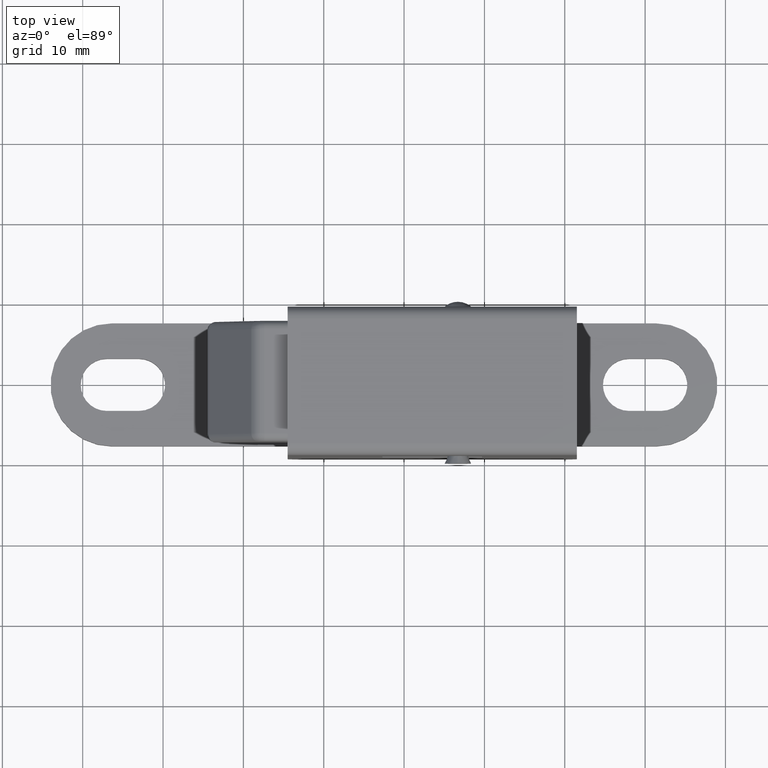
[diagram: clean part render]
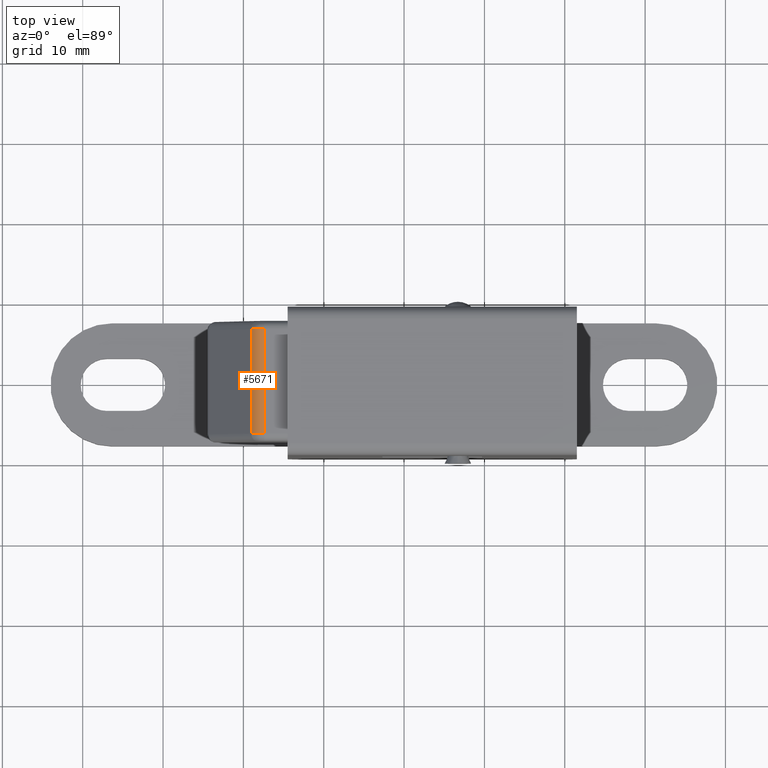
[diagram: same view with one face highlighted and labeled with its STEP entity id]
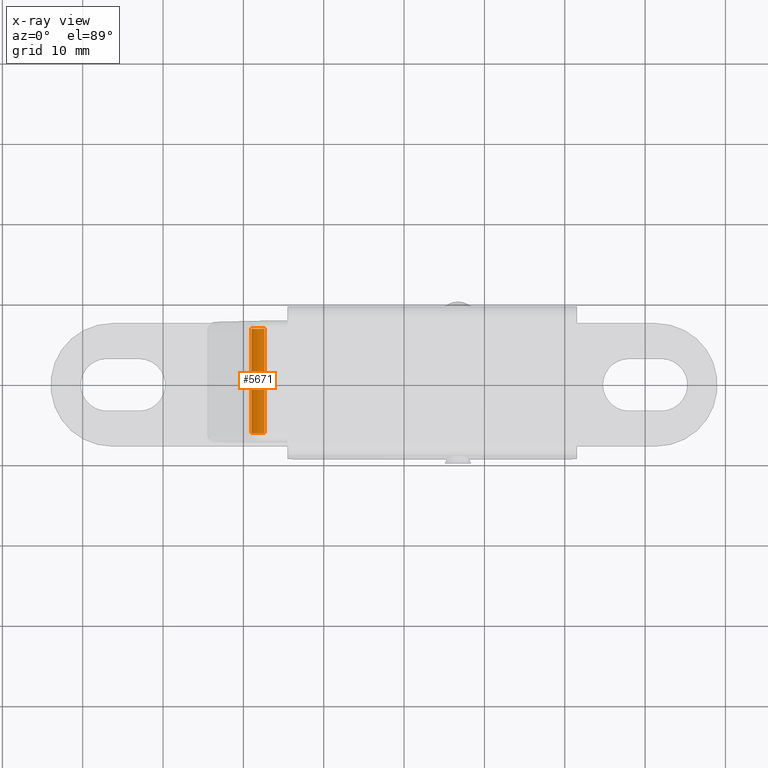
[diagram: x-ray of the same camera — body ghosted, the highlighted face saturated]
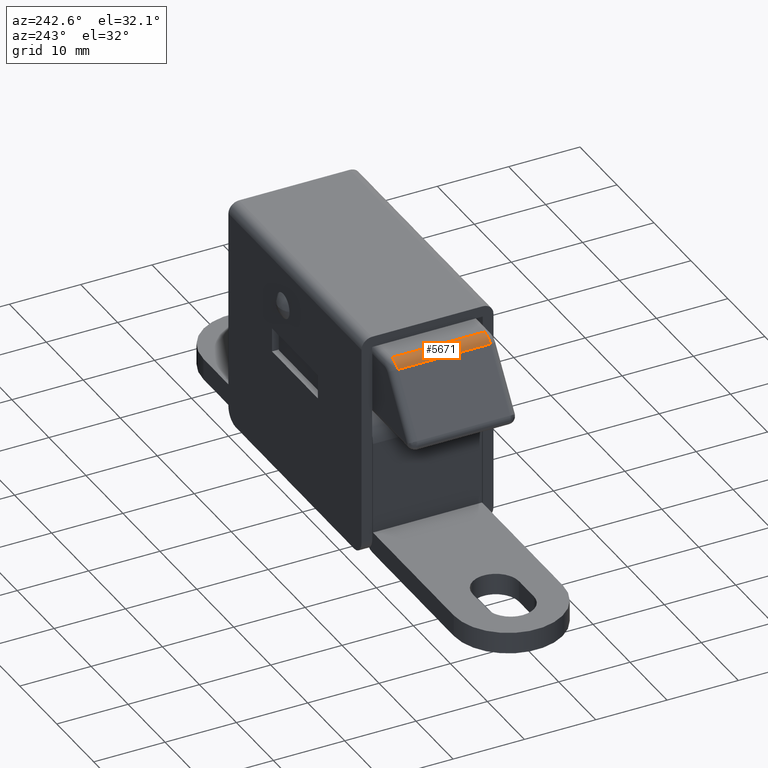
[diagram: same view with one face highlighted and labeled with its STEP entity id]
A machine part, top view. The second image highlights one B-rep face of the part: STEP entity #5671.
The next image is the same camera in x-ray: the body ghosted, the highlighted face saturated — about 0% of this face is hidden behind the body in this view.
A second angle (auxiliary view) of the same face is appended — the face is thin or edge-on in the first view.
In plain terms, the highlighted cylindrical surface (edge-blend (fillet) strip) has radius 2 mm, axis along (0, -1, -0).
Its self-contained STEP definition (entity closure, byte-faithful):
#137 = VERTEX_POINT ( 'NONE', #2129 ) ;
#227 = AXIS2_PLACEMENT_3D ( 'NONE', #4685, #4899, #1557 ) ;
#326 = EDGE_CURVE ( 'NONE', #3352, #4983, #1541, .T. ) ;
#938 = ORIENTED_EDGE ( 'NONE', *, *, #1117, .T. ) ;
#973 = EDGE_CURVE ( 'NONE', #2015, #137, #1641, .T. ) ;
#1117 = EDGE_CURVE ( 'NONE', #137, #3352, #2619, .T. ) ;
#1494 = EDGE_CURVE ( 'NONE', #2015, #4983, #5099, .T. ) ;
#1541 = CIRCLE ( 'NONE', #227, 1.999999999999998200 ) ;
#1557 = DIRECTION ( 'NONE',  ( -1.000000000000000000, 0.0000000000000000000, 0.0000000000000000000 ) ) ;
#1628 = CARTESIAN_POINT ( 'NONE',  ( -24.12777264380000000, -5.000000000000000000, -992.5000000000000000 ) ) ;
#1641 = CIRCLE ( 'NONE', #3386, 1.999999999999998200 ) ;
#1660 = AXIS2_PLACEMENT_3D ( 'NONE', #3486, #1699, #3554 ) ;
#1699 = DIRECTION ( 'NONE',  ( -0.0000000000000000000, 0.0000000000000000000, -1.000000000000000000 ) ) ;
#1720 = ORIENTED_EDGE ( 'NONE', *, *, #326, .T. ) ;
#2015 = VERTEX_POINT ( 'NONE', #4688 ) ;
#2129 = CARTESIAN_POINT ( 'NONE',  ( -24.12777264380000000, -5.000000000000009800, -6.499999999999962700 ) ) ;
#2395 = ORIENTED_EDGE ( 'NONE', *, *, #1494, .F. ) ;
#2529 = DIRECTION ( 'NONE',  ( 0.0000000000000000000, -0.0000000000000000000, 1.000000000000000000 ) ) ;
#2619 = LINE ( 'NONE', #1628, #3804 ) ;
#2779 = VECTOR ( 'NONE', #4201, 1000.000000000000000 ) ;
#3352 = VERTEX_POINT ( 'NONE', #4153 ) ;
#3386 = AXIS2_PLACEMENT_3D ( 'NONE', #4359, #3921, #5192 ) ;
#3433 = CYLINDRICAL_SURFACE ( 'NONE', #1660, 1.999999999999998200 ) ;
#3486 = CARTESIAN_POINT ( 'NONE',  ( -24.12777264380000000, -3.000000000000000000, -992.5000000000000000 ) ) ;
#3554 = DIRECTION ( 'NONE',  ( -1.000000000000000000, 0.0000000000000000000, 0.0000000000000000000 ) ) ;
#3799 = CARTESIAN_POINT ( 'NONE',  ( -25.76607672355637000, -4.147152885291953700, 6.499999999999988500 ) ) ;
#3804 = VECTOR ( 'NONE', #2529, 1000.000000000000000 ) ;
#3921 = DIRECTION ( 'NONE',  ( 0.0000000000000000000, -0.0000000000000000000, 1.000000000000000000 ) ) ;
#4153 = CARTESIAN_POINT ( 'NONE',  ( -24.12777264380000000, -5.000000000000009800, 6.499999999999962700 ) ) ;
#4201 = DIRECTION ( 'NONE',  ( 0.0000000000000000000, 0.0000000000000000000, 1.000000000000000000 ) ) ;
#4359 = CARTESIAN_POINT ( 'NONE',  ( -24.12777264380000000, -3.000000000000000000, -6.499999999999950300 ) ) ;
#4532 = EDGE_LOOP ( 'NONE', ( #2395, #4773, #938, #1720 ) ) ;
#4685 = CARTESIAN_POINT ( 'NONE',  ( -24.12777264380000000, -3.000000000000000000, 6.499999999999950300 ) ) ;
#4688 = CARTESIAN_POINT ( 'NONE',  ( -25.76607671471875700, -4.147152897905626500, -6.499999999999988500 ) ) ;
#4773 = ORIENTED_EDGE ( 'NONE', *, *, #973, .T. ) ;
#4899 = DIRECTION ( 'NONE',  ( -0.0000000000000000000, 0.0000000000000000000, -1.000000000000000000 ) ) ;
#4983 = VERTEX_POINT ( 'NONE', #3799 ) ;
#4994 = FACE_OUTER_BOUND ( 'NONE', #4532, .T. ) ;
#5046 = CARTESIAN_POINT ( 'NONE',  ( -25.76607673238011000, -4.147152872686072000, -7.799999999999999800 ) ) ;
#5099 = LINE ( 'NONE', #5046, #2779 ) ;
#5192 = DIRECTION ( 'NONE',  ( -1.000000000000000000, 8.673617379884043400E-016, 0.0000000000000000000 ) ) ;
#5671 = ADVANCED_FACE ( 'NONE', ( #4994 ), #3433, .T. ) ;